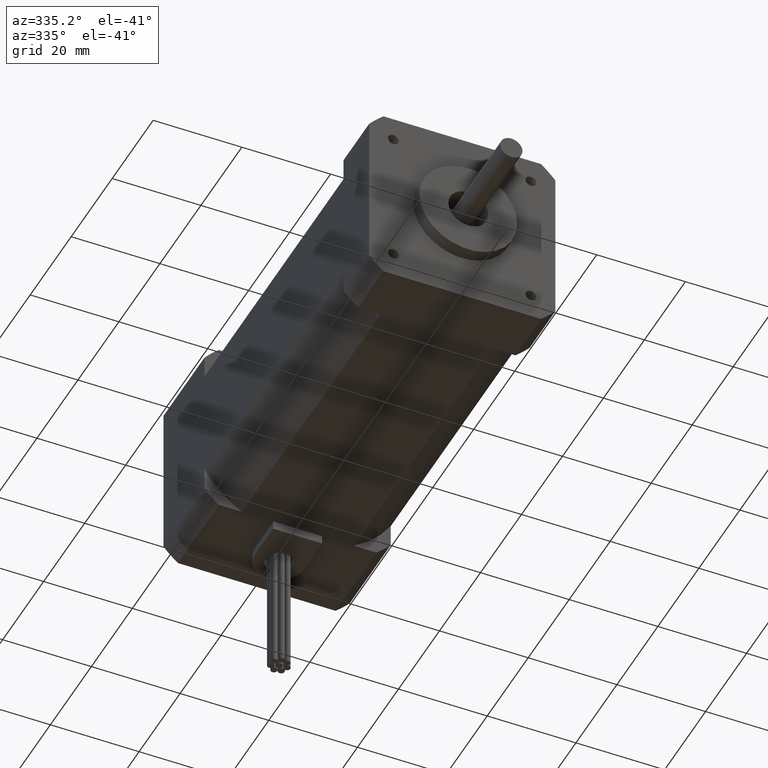
[diagram: clean part render]
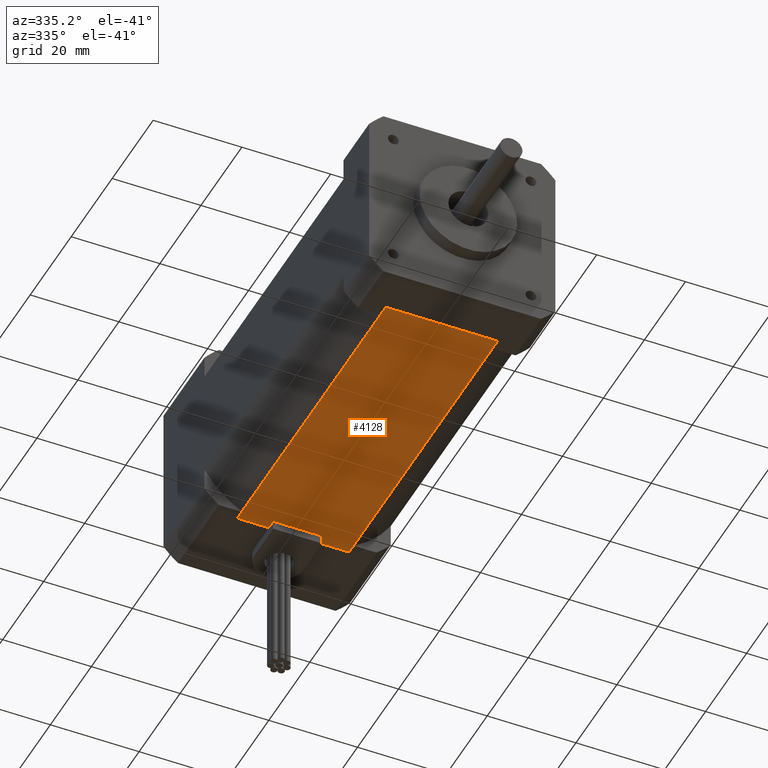
[diagram: same view with one face highlighted and labeled with its STEP entity id]
A machine part, auxiliary view. The second image highlights one B-rep face of the part: STEP entity #4128.
In plain terms, the highlighted planar face has unit normal (-0, -0, -1).
Its self-contained STEP definition (entity closure, byte-faithful):
#197=PLANE('',#4411);
#331=LINE('',#6203,#553);
#332=LINE('',#6206,#554);
#333=LINE('',#6208,#555);
#334=LINE('',#6209,#556);
#553=VECTOR('',#4940,7.25);
#554=VECTOR('',#4943,2.52388589282479);
#555=VECTOR('',#4944,2.52388589282479);
#556=VECTOR('',#4945,7.25);
#862=FACE_OUTER_BOUND('',#1125,.T.);
#1125=EDGE_LOOP('',(#2680,#2681,#2682,#2683));
#1714=VERTEX_POINT('',#6196);
#1717=VERTEX_POINT('',#6201);
#1718=VERTEX_POINT('',#6205);
#1719=VERTEX_POINT('',#6207);
#2119=EDGE_CURVE('',#1714,#1717,#331,.T.);
#2120=EDGE_CURVE('',#1718,#1714,#332,.T.);
#2121=EDGE_CURVE('',#1719,#1717,#333,.T.);
#2122=EDGE_CURVE('',#1718,#1719,#334,.T.);
#2680=ORIENTED_EDGE('',*,*,#2120,.T.);
#2681=ORIENTED_EDGE('',*,*,#2119,.T.);
#2682=ORIENTED_EDGE('',*,*,#2121,.F.);
#2683=ORIENTED_EDGE('',*,*,#2122,.F.);
#4128=ADVANCED_FACE('',(#862),#197,.T.);
#4411=AXIS2_PLACEMENT_3D('',#6204,#4941,#4942);
#4940=DIRECTION('',(-6.0767174219161E-33,1.,-1.24501532695106E-16));
#4941=DIRECTION('center_axis',(-1.75954551318098E-16,-1.24501532695106E-16,
-1.));
#4942=DIRECTION('ref_axis',(-1.,0.,2.22044604925031E-16));
#4943=DIRECTION('',(-1.,1.58298939018668E-32,1.75954551318098E-16));
#4944=DIRECTION('',(-1.,1.58298939018668E-32,1.75954551318098E-16));
#4945=DIRECTION('',(-6.0767174219161E-33,1.,-1.24501532695106E-16));
#6196=CARTESIAN_POINT('',(-1.67720289971137,-1.33735649038034,-0.652197207720413));
#6201=CARTESIAN_POINT('',(-1.67720289971137,5.91264350961966,-0.652197207720414));
#6203=CARTESIAN_POINT('',(-1.67720289971137,-1.33735649038034,-0.652197207720413));
#6204=CARTESIAN_POINT('Origin',(0.846682993113417,-1.33735649038034,-0.652197207720414));
#6205=CARTESIAN_POINT('',(0.846682993113417,-1.33735649038034,-0.652197207720414));
#6206=CARTESIAN_POINT('',(0.846682993113417,-1.33735649038034,-0.652197207720414));
#6207=CARTESIAN_POINT('',(0.846682993113417,5.91264350961966,-0.652197207720415));
#6208=CARTESIAN_POINT('',(0.846682993113417,5.91264350961966,-0.652197207720415));
#6209=CARTESIAN_POINT('',(0.846682993113417,-1.33735649038034,-0.652197207720414));